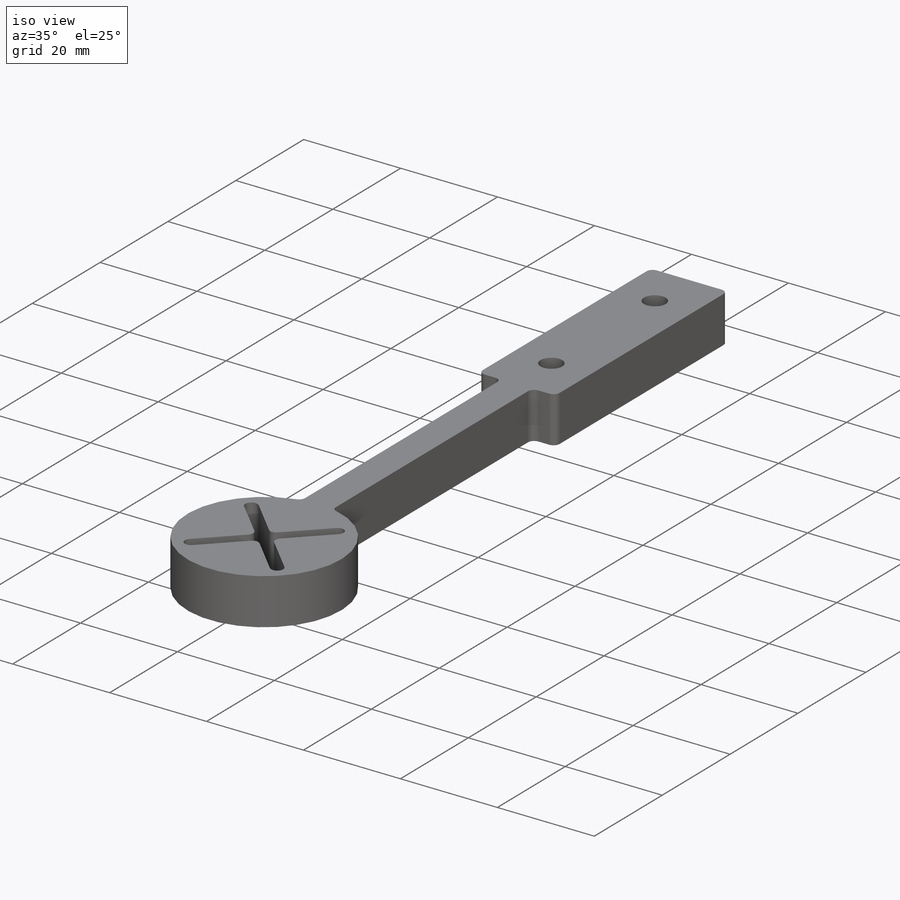
[diagram: iso view]
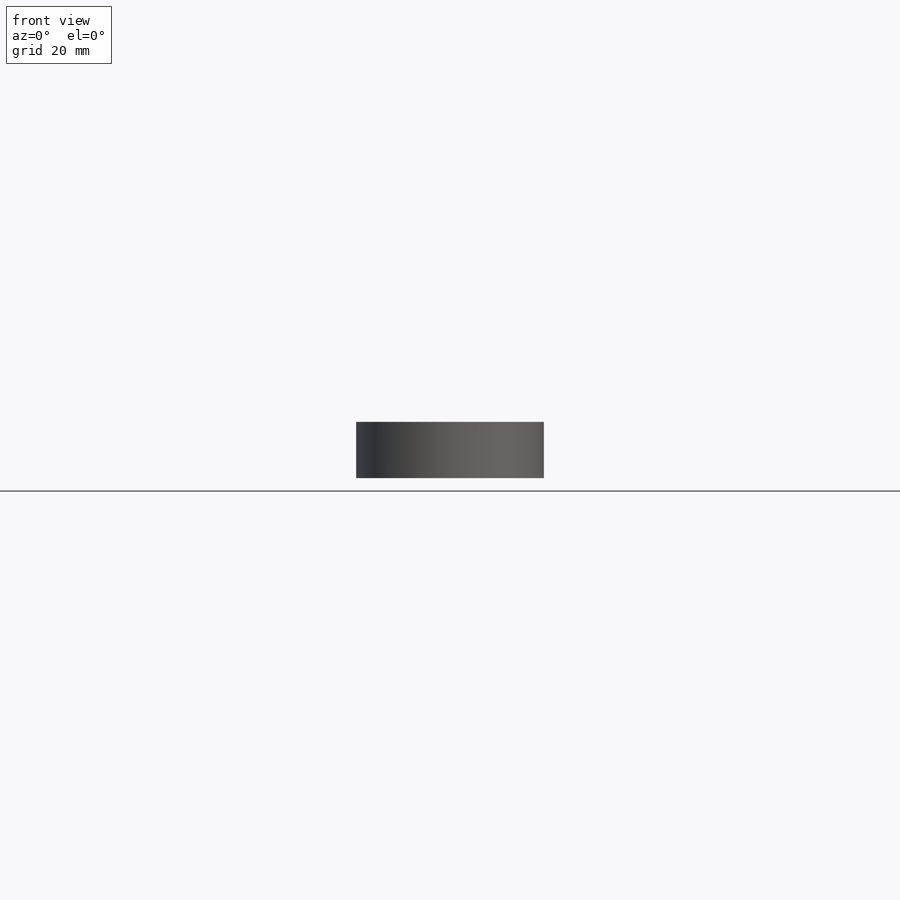
[diagram: front view]
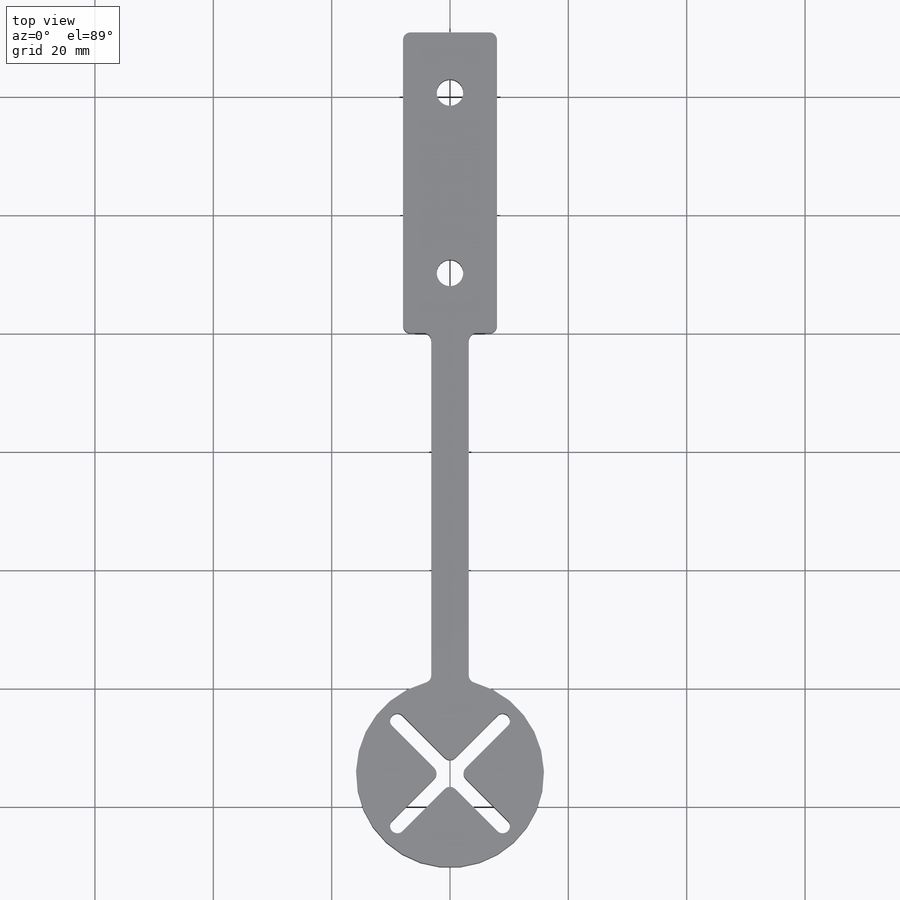
[diagram: top view]
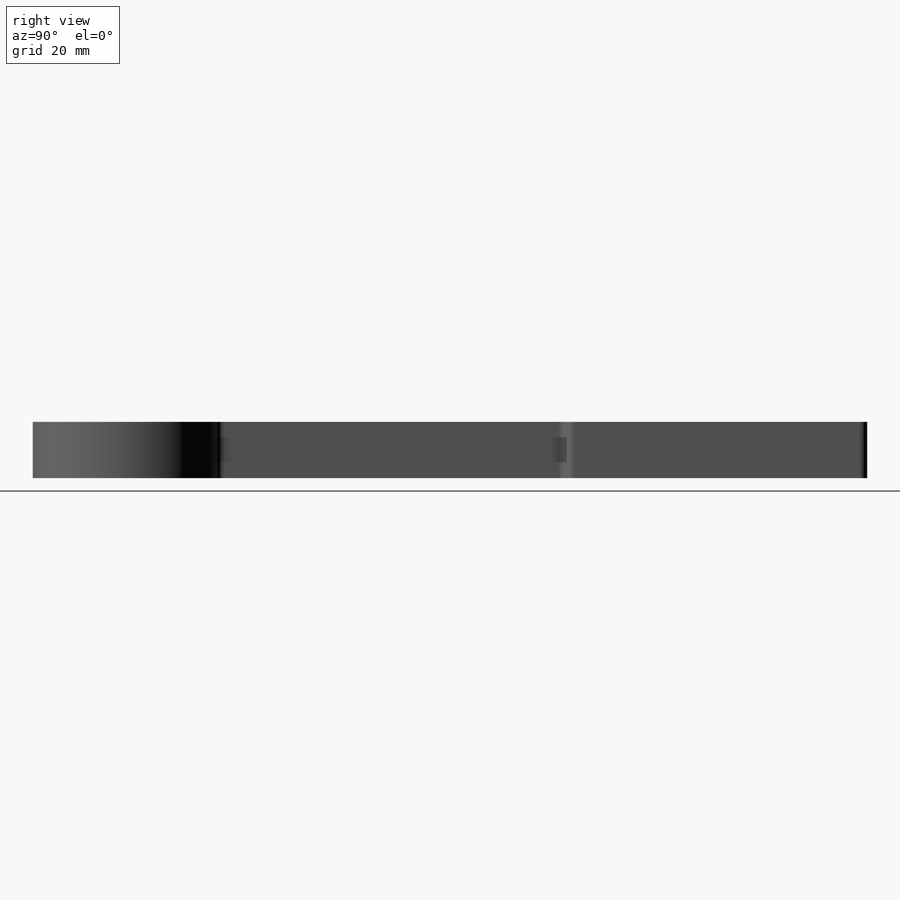
[diagram: right view]
SOLIDWORKS PART (.sldprt)
format: sldprt  version: not decoded by parser v0  size: 339,456 bytes
history: native  units: mm
features: sketch x5, cut_extrude x2, fillet x2, material x1, extrude x1, plane x1 (+11 scaffold rows collapsed)
feature tree (23):
  scaffold x11  (default folders/planes/origin — collapsed)
  material  "6061-T6 (SS)"
  sketch  "Sketch1"  dims[c1.D7=31.75mm c1.D1=15.875mm c1.D2=7.9375mm c1.D3=50.8mm c1.D4=76.2mm c1.D5=6.35mm c1.D6=3.175mm c2.D4=74.422mm]
  extrude  "Boss-Extrude1"  Depth=9.525mm
  sketch  "Sketch2"  dims[D1=4.4958mm D2=4.4958mm D3=10.16mm D4=10.16mm]
  cut_extrude  "Cut-Extrude1"  [1 undecoded]
  sketch  "Sketch3"  dims[c1.D3=~2.465106mm c1.D5=2.5mm c1.D6=1.25mm c1.D7=2.5mm c1.D1=8.89mm c1.D2=~11.368013mm c2.D1=8.89mm c2.D2=8.89mm c2.D3=17.78mm c2.D4=17.78mm c2.D8=8.89mm c2.D9=~11.535276mm]
  cut_extrude  "Cut-Extrude2"  [1 undecoded]
  fillet  "Fillet1"  Radius=1.25mm
  sketch  "Sketch4"
  sketch  "Sketch5"
  fillet  "Split Line2"  [1 undecoded]
  plane  "Plane1"
decode coverage: 5 of 10 modeling features carry decoded parameters
note: ~ marks probable driven/reference dimensions
note: 3 parameter values undecoded
summary: no parameter record found for 3 features
note: suppression state not decoded; provenance and decode notes live in map.json
